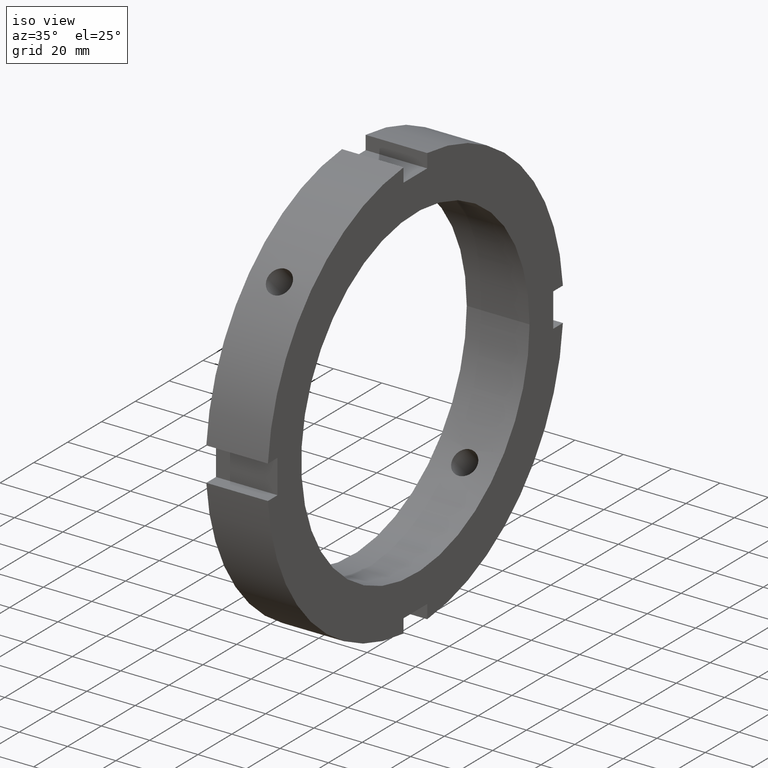
[diagram: clean part render]
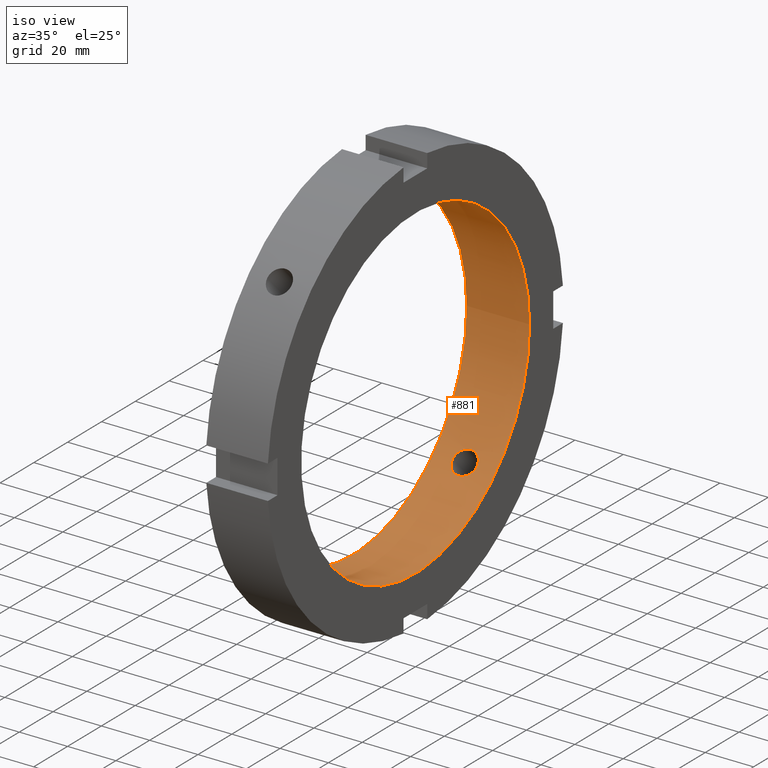
[diagram: same view with one face highlighted and labeled with its STEP entity id]
A machine part, iso view. The second image highlights one B-rep face of the part: STEP entity #881.
In plain terms, the highlighted cylindrical surface (bore or boss wall) has radius 67.5 mm, axis along (1, 0, 0).
Its self-contained STEP definition (entity closure, byte-faithful):
#114=CARTESIAN_POINT('',(12.999999999999982,-51.168793944748543,44.022772814077300));
#115=VERTEX_POINT('',#114);
#116=CARTESIAN_POINT('',(12.999999999999982,-51.168793944748543,44.022772814077314));
#117=CARTESIAN_POINT('',(13.634721061689653,-51.168793944748543,44.022772814077314));
#118=CARTESIAN_POINT('',(14.311586774038616,-51.086065580572885,44.119505016772450));
#119=CARTESIAN_POINT('',(15.556471110348093,-50.746656773435738,44.509478154486992));
#120=CARTESIAN_POINT('',(16.124509940206710,-50.489619645927668,44.802343979137603));
#121=CARTESIAN_POINT('',(17.021510713031351,-49.888965859493510,45.470240851091191));
#122=CARTESIAN_POINT('',(17.410351188051017,-49.505194024463925,45.889797532962334));
#123=CARTESIAN_POINT('',(17.926102394057356,-48.650159380542384,46.795296187324304));
#124=CARTESIAN_POINT('',(18.052999999999983,-48.178522819206229,47.280892640977683));
#125=CARTESIAN_POINT('',(18.052999999999983,-47.280892640977676,48.178522819206236));
#126=CARTESIAN_POINT('',(17.926102394057359,-46.795296187324297,48.650159380542405));
#127=CARTESIAN_POINT('',(17.410351188051028,-45.889797532962326,49.505194024463933));
#128=CARTESIAN_POINT('',(17.021510713031354,-45.470240851091184,49.888965859493517));
#129=CARTESIAN_POINT('',(16.124509940206710,-44.802343979137582,50.489619645927689));
#130=CARTESIAN_POINT('',(15.556471110348101,-44.509478154486970,50.746656773435753));
#131=CARTESIAN_POINT('',(14.311586774038629,-44.119505016772429,51.086065580572900));
#132=CARTESIAN_POINT('',(13.634721061689653,-44.022772814077307,51.168793944748543));
#133=CARTESIAN_POINT('',(12.365278938310311,-44.022772814077307,51.168793944748543));
#134=CARTESIAN_POINT('',(11.688413225961336,-44.119505016772429,51.086065580572900));
#135=CARTESIAN_POINT('',(10.443528889651866,-44.509478154486970,50.746656773435753));
#136=CARTESIAN_POINT('',(9.875490059793254,-44.802343979137582,50.489619645927689));
#137=CARTESIAN_POINT('',(8.978489286968612,-45.470240851091184,49.888965859493517));
#138=CARTESIAN_POINT('',(8.589648811948937,-45.889797532962326,49.505194024463925));
#139=CARTESIAN_POINT('',(8.073897605942607,-46.795296187324297,48.650159380542391));
#140=CARTESIAN_POINT('',(7.946999999999981,-47.280892640977676,48.178522819206236));
#141=CARTESIAN_POINT('',(7.946999999999984,-48.178522819206229,47.280892640977683));
#142=CARTESIAN_POINT('',(8.073897605942609,-48.650159380542384,46.795296187324304));
#143=CARTESIAN_POINT('',(8.589648811948946,-49.505194024463925,45.889797532962334));
#144=CARTESIAN_POINT('',(8.978489286968616,-49.888965859493510,45.470240851091191));
#145=CARTESIAN_POINT('',(9.875490059793252,-50.489619645927675,44.802343979137603));
#146=CARTESIAN_POINT('',(10.443528889651873,-50.746656773435745,44.509478154487006));
#147=CARTESIAN_POINT('',(11.688413225961344,-51.086065580572892,44.119505016772465));
#148=CARTESIAN_POINT('',(12.365278938310311,-51.168793944748543,44.022772814077314));
#149=CARTESIAN_POINT('',(12.999999999999982,-51.168793944748543,44.022772814077314));
#150=B_SPLINE_CURVE_WITH_KNOTS('',3,(#116,#117,#118,#119,#120,#121,#122,#123,#124,#125,#126,#127,#128,#129,#130,#131,#132,#133,#134,#135,#136,#137,#138,#139,#140,#141,#142,#143,#144,#145,#146,#147,#148,#149),.UNSPECIFIED.,.T.,.U.,(4,2,2,2,2,2,2,2,2,2,2,2,2,2,2,2,4),(0.0,0.190416318506901,0.380832637013803,0.571248752820733,0.761664868627663,0.952080984434594,1.142497100241524,1.332913418748426,1.523329737255327,1.713746055762228,1.904162374269130,2.094578490076060,2.284994605882991,2.475410721689921,2.665826837496851,2.856243156003752,3.046659474510654),.UNSPECIFIED.);
#151=EDGE_CURVE('',#115,#115,#150,.T.);
#202=CARTESIAN_POINT('',(12.999999999999982,44.022772814077285,-51.168793944748558));
#203=VERTEX_POINT('',#202);
#204=CARTESIAN_POINT('',(12.999999999999982,44.022772814077300,-51.168793944748565));
#205=CARTESIAN_POINT('',(12.365278938310311,44.022772814077300,-51.168793944748565));
#206=CARTESIAN_POINT('',(11.688413225961336,44.119505016772429,-51.086065580572900));
#207=CARTESIAN_POINT('',(10.443528889651866,44.509478154486970,-50.746656773435753));
#208=CARTESIAN_POINT('',(9.875490059793254,44.802343979137582,-50.489619645927689));
#209=CARTESIAN_POINT('',(8.978489286968612,45.470240851091184,-49.888965859493517));
#210=CARTESIAN_POINT('',(8.589648811948939,45.889797532962326,-49.505194024463933));
#211=CARTESIAN_POINT('',(8.073897605942607,46.795296187324297,-48.650159380542391));
#212=CARTESIAN_POINT('',(7.946999999999981,47.280892640977676,-48.178522819206236));
#213=CARTESIAN_POINT('',(7.946999999999984,48.178522819206229,-47.280892640977683));
#214=CARTESIAN_POINT('',(8.073897605942609,48.650159380542384,-46.795296187324304));
#215=CARTESIAN_POINT('',(8.589648811948946,49.505194024463925,-45.889797532962334));
#216=CARTESIAN_POINT('',(8.978489286968616,49.888965859493510,-45.470240851091191));
#217=CARTESIAN_POINT('',(9.875490059793254,50.489619645927668,-44.802343979137603));
#218=CARTESIAN_POINT('',(10.443528889651873,50.746656773435738,-44.509478154486992));
#219=CARTESIAN_POINT('',(11.688413225961350,51.086065580572885,-44.119505016772450));
#220=CARTESIAN_POINT('',(12.365278938310311,51.168793944748536,-44.022772814077314));
#221=CARTESIAN_POINT('',(13.634721061689653,51.168793944748536,-44.022772814077307));
#222=CARTESIAN_POINT('',(14.311586774038616,51.086065580572892,-44.119505016772450));
#223=CARTESIAN_POINT('',(15.556471110348088,50.746656773435745,-44.509478154486985));
#224=CARTESIAN_POINT('',(16.124509940206707,50.489619645927668,-44.802343979137589));
#225=CARTESIAN_POINT('',(17.021510713031347,49.888965859493510,-45.470240851091191));
#226=CARTESIAN_POINT('',(17.410351188051024,49.505194024463925,-45.889797532962326));
#227=CARTESIAN_POINT('',(17.926102394057359,48.650159380542391,-46.795296187324297));
#228=CARTESIAN_POINT('',(18.052999999999983,48.178522819206229,-47.280892640977683));
#229=CARTESIAN_POINT('',(18.052999999999983,47.280892640977683,-48.178522819206236));
#230=CARTESIAN_POINT('',(17.926102394057366,46.795296187324297,-48.650159380542384));
#231=CARTESIAN_POINT('',(17.410351188051038,45.889797532962326,-49.505194024463925));
#232=CARTESIAN_POINT('',(17.021510713031354,45.470240851091184,-49.888965859493517));
#233=CARTESIAN_POINT('',(16.124509940206714,44.802343979137589,-50.489619645927689));
#234=CARTESIAN_POINT('',(15.556471110348101,44.509478154486992,-50.746656773435760));
#235=CARTESIAN_POINT('',(14.311586774038625,44.119505016772436,-51.086065580572907));
#236=CARTESIAN_POINT('',(13.634721061689657,44.022772814077300,-51.168793944748565));
#237=CARTESIAN_POINT('',(12.999999999999982,44.022772814077300,-51.168793944748565));
#238=B_SPLINE_CURVE_WITH_KNOTS('',3,(#204,#205,#206,#207,#208,#209,#210,#211,#212,#213,#214,#215,#216,#217,#218,#219,#220,#221,#222,#223,#224,#225,#226,#227,#228,#229,#230,#231,#232,#233,#234,#235,#236,#237),.UNSPECIFIED.,.T.,.U.,(4,2,2,2,2,2,2,2,2,2,2,2,2,2,2,2,4),(0.0,0.190416318506901,0.380832637013803,0.571248752820733,0.761664868627664,0.952080984434594,1.142497100241524,1.332913418748426,1.523329737255327,1.713746055762228,1.904162374269130,2.094578490076060,2.284994605882990,2.475410721689920,2.665826837496851,2.856243156003752,3.046659474510654),.UNSPECIFIED.);
#239=EDGE_CURVE('',#203,#203,#238,.T.);
#712=CARTESIAN_POINT('',(25.999999999999982,67.500000000000000,0.0));
#713=VERTEX_POINT('',#712);
#714=CARTESIAN_POINT('',(25.999999999999982,0.0,0.0));
#715=DIRECTION('',(1.0,0.0,0.0));
#716=DIRECTION('',(0.0,1.0,0.0));
#717=AXIS2_PLACEMENT_3D('',#714,#715,#716);
#718=CIRCLE('',#717,67.500000000000000);
#719=EDGE_CURVE('',#713,#713,#718,.T.);
#805=CARTESIAN_POINT('',(-1.977161E-014,67.500000000000000,0.0));
#806=VERTEX_POINT('',#805);
#807=CARTESIAN_POINT('',(-1.977151E-014,0.0,0.0));
#808=DIRECTION('',(1.0,0.0,0.0));
#809=DIRECTION('',(0.0,1.0,0.0));
#810=AXIS2_PLACEMENT_3D('',#807,#808,#809);
#811=CIRCLE('',#810,67.500000000000000);
#812=EDGE_CURVE('',#806,#806,#811,.T.);
#864=CARTESIAN_POINT('',(12.999999999999982,0.0,0.0));
#865=DIRECTION('',(1.0,0.0,0.0));
#866=DIRECTION('',(0.0,1.0,0.0));
#867=AXIS2_PLACEMENT_3D('',#864,#865,#866);
#868=CYLINDRICAL_SURFACE('',#867,67.500000000000000);
#869=ORIENTED_EDGE('',*,*,#812,.F.);
#870=EDGE_LOOP('',(#869));
#871=FACE_OUTER_BOUND('',#870,.T.);
#872=ORIENTED_EDGE('',*,*,#151,.T.);
#873=EDGE_LOOP('',(#872));
#874=FACE_BOUND('',#873,.T.);
#875=ORIENTED_EDGE('',*,*,#239,.T.);
#876=EDGE_LOOP('',(#875));
#877=FACE_BOUND('',#876,.T.);
#878=ORIENTED_EDGE('',*,*,#719,.T.);
#879=EDGE_LOOP('',(#878));
#880=FACE_BOUND('',#879,.T.);
#881=ADVANCED_FACE('',(#871,#874,#877,#880),#868,.F.);